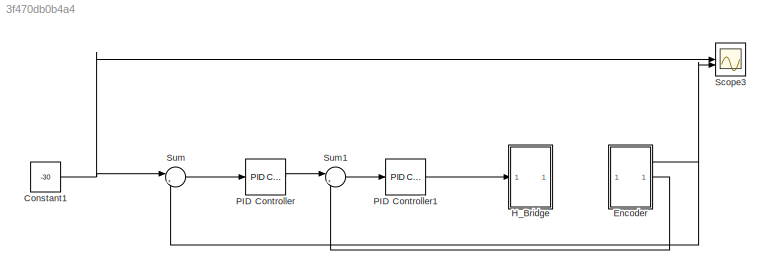
MODEL slx_3f470db0b4a4
KIND model
CONFIG AbsTol = auto
CONFIG EnableMultiTasking = on
CONFIG FixedStep = 0.005
CONFIG MaxStep = auto
CONFIG MinStep = auto
CONFIG RelTol = 1e-3
CONFIG SampleTimeConstraint = Unconstrained
CONFIG SolverName = FixedStepAuto
CONFIG StartTime = 0.0
CONFIG StopTime = inf
BLOCK [Constant] Constant1
  Value = -30
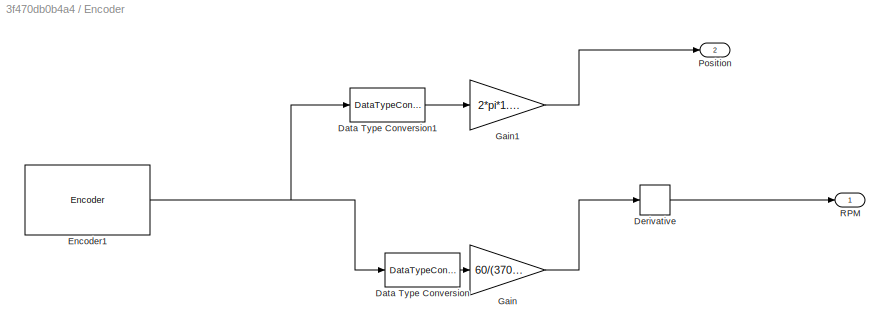
BLOCK [SubSystem] Encoder
BLOCK [DataTypeConversion] Encoder/Data Type Conversion
  RndMeth = Floor
  SaturateOnIntegerOverflow = off
BLOCK [DataTypeConversion] Encoder/Data Type Conversion1
  RndMeth = Floor
  SaturateOnIntegerOverflow = off
BLOCK [Derivative] Encoder/Derivative
BLOCK [Reference] Encoder/Encoder1  REF=arduinosensorlib/Encoder
  SourceBlock = arduinosensorlib/Encoder
  SourceType = Arduino Rotary Encoder
BLOCK [Gain] Encoder/Gain
  Gain = 60/(370*4)
  OutDataTypeStr = double
BLOCK [Gain] Encoder/Gain1
  Gain = 2*pi*1.1/(370*4)
  OutDataTypeStr = double
BLOCK [Outport] Encoder/Position
  Port = 2
BLOCK [Outport] Encoder/RPM
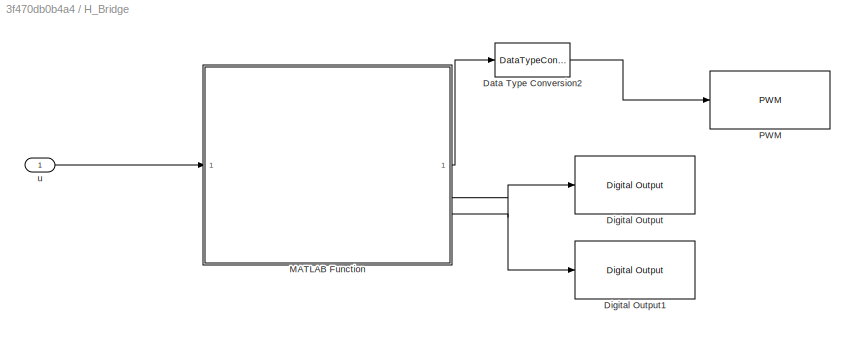
BLOCK [SubSystem] H_Bridge
BLOCK [DataTypeConversion] H_Bridge/Data Type Conversion2
  RndMeth = Floor
  SaturateOnIntegerOverflow = off
BLOCK [Reference] H_Bridge/Digital Output  REF=arduinolib/Digital Output
  SourceBlock = arduinolib/Digital Output
  SourceType = Arduino Digital Output
BLOCK [Reference] H_Bridge/Digital Output1  REF=arduinolib/Digital Output
  SourceBlock = arduinolib/Digital Output
  SourceType = Arduino Digital Output
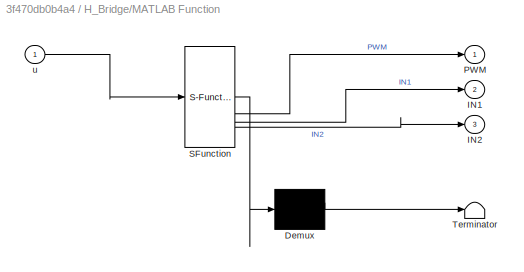
BLOCK [SubSystem] H_Bridge/MATLAB Function
  ErrorFcn = Stateflow.Translate.translate
  PermitHierarchicalResolution = ExplicitOnly
  SFBlockType = MATLAB Function
  TreatAsAtomicUnit = on
BLOCK [Demux] H_Bridge/MATLAB Function/ Demux 
  Outputs = 1
BLOCK [S-Function] H_Bridge/MATLAB Function/ SFunction 
  EnableBusSupport = on
  FunctionName = sf_sfun
  PortCounts = [1 4]
  SFcnIsStateOwnerBlock = off
  SFunctionDeploymentMode = off
  Tag = Stateflow S-Function 2
BLOCK [Terminator] H_Bridge/MATLAB Function/ Terminator 
BLOCK [Outport] H_Bridge/MATLAB Function/IN1
  Port = 2
BLOCK [Outport] H_Bridge/MATLAB Function/IN2
  Port = 3
BLOCK [Outport] H_Bridge/MATLAB Function/PWM
BLOCK [Inport] H_Bridge/MATLAB Function/u
BLOCK [Reference] H_Bridge/PWM  REF=arduinolib/PWM
  SourceBlock = arduinolib/PWM
  SourceType = Arduino PWM
BLOCK [Inport] H_Bridge/u
BLOCK [Reference] PID Controller  REF=slpidlib/PID Controller
  LibrarySourceBlock = simulink/Continuous/PID Controller
  SourceBlock = slpidlib/PID Controller
  SourceType = PID 1dof
BLOCK [Reference] PID Controller1  REF=slpidlib/PID Controller
  LibrarySourceBlock = simulink/Continuous/PID Controller
  SourceBlock = slpidlib/PID Controller
  SourceType = PID 1dof
BLOCK [Scope] Scope3
  Floating = off
  NumInputPorts = 2
  ScopeSpecificationString = Simulink.scopes.TimeScopeBlockCfg('CurrentConfiguration', extmgr.ConfigurationSet(extmgr.Configuration('Core','General UI',true),extmgr.Configuration('Core','Source UI',true),extmgr.Configuration('Sources','WiredSimulink',true,'DataLoggingVariableName','ScopeData1'),extmgr.Configuration('Visuals','Time Domain',true,'SerializedDisplays',{struct('MinYLimReal','-33.84419','MaxYLimReal','3.76047','YLa...<+1457ch>
BLOCK [Sum] Sum
  Inputs = |+-
BLOCK [Sum] Sum1
  Inputs = |+-
NET Constant1:1 -> Scope3:1, Sum:1
LINE Encoder/Data Type Conversion1:1 -> Encoder/Gain1:1
LINE Encoder/Data Type Conversion:1 -> Encoder/Gain:1
LINE Encoder/Derivative:1 -> Encoder/RPM:1
NET Encoder/Encoder1:1 -> Encoder/Data Type Conversion1:1, Encoder/Data Type Conversion:1
LINE Encoder/Gain1:1 -> Encoder/Position:1
LINE Encoder/Gain:1 -> Encoder/Derivative:1
LINE Encoder:1 -> Sum1:2
NET Encoder:2 -> Scope3:2, Sum:2
LINE H_Bridge/Data Type Conversion2:1 -> H_Bridge/PWM:1
LINE H_Bridge/MATLAB Function:1 -> H_Bridge/Data Type Conversion2:1
LINE H_Bridge/MATLAB Function:2 -> H_Bridge/Digital Output:1
LINE H_Bridge/MATLAB Function:3 -> H_Bridge/Digital Output1:1
LINE H_Bridge/u:1 -> H_Bridge/MATLAB Function:1
LINE PID Controller1:1 -> H_Bridge:1
LINE PID Controller:1 -> Sum1:1
LINE Sum1:1 -> PID Controller1:1
LINE Sum:1 -> PID Controller:1
note: NET lines group one-source signal fan-out (src -> all destinations, sorted); 1:1 wires keep LINE
CHART H_Bridge/MATLAB Function states=1 transitions=1
  STATE_LABEL 'eML_blk_kernel()'
  STATE_LABEL 'SCRIPT:\nfunction [PWM,IN1,IN2]=fcn1(u)\nPWM= abs(u);\nif u<0\nIN1=1; IN2=0;\nelseif u>0\nIN1=0; IN2=1;\nelse\nIN1=0; IN2=0;\nend'
CHART  states=0 transitions=0
